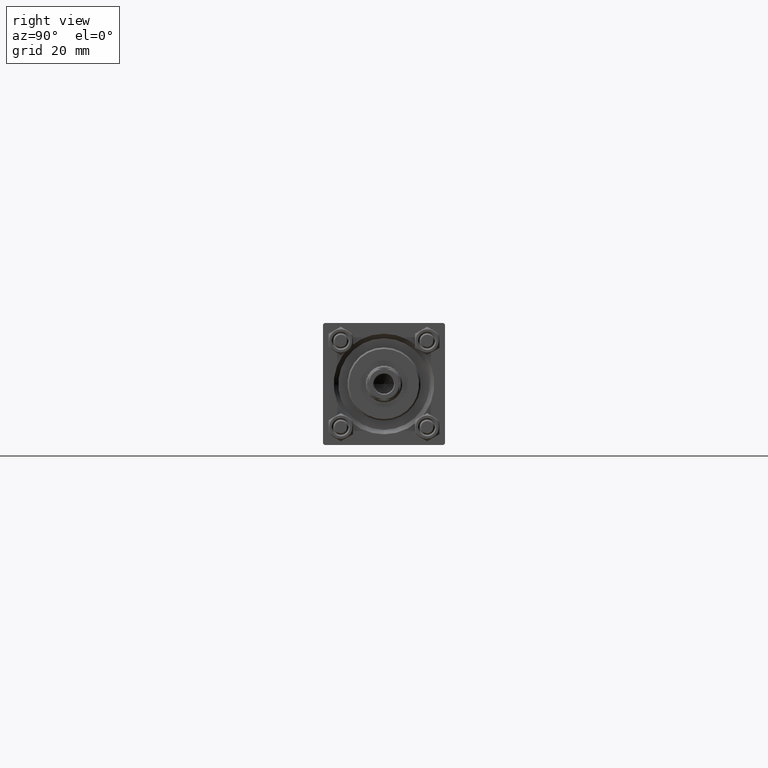
[diagram: clean part render]
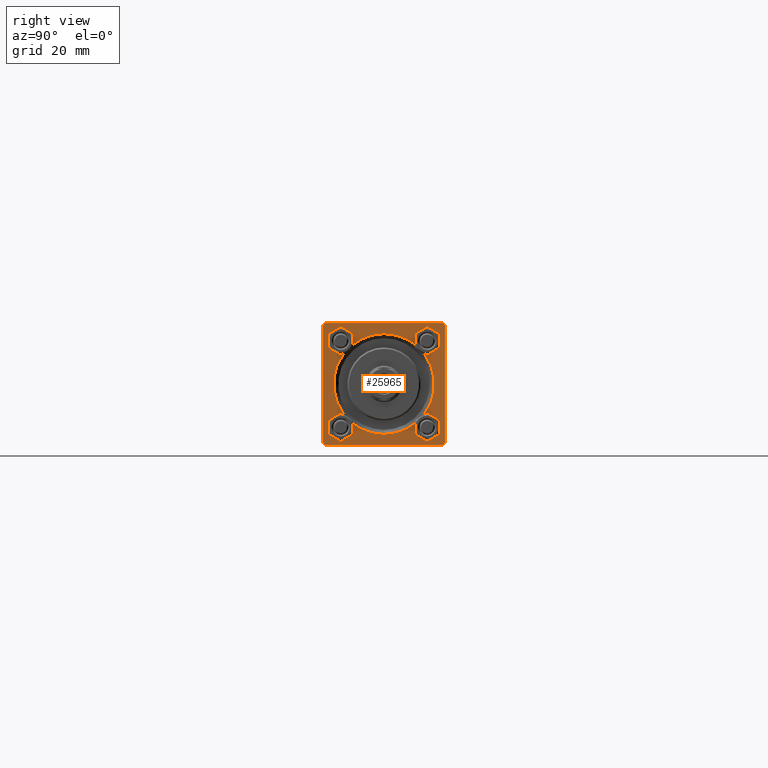
[diagram: same view with one face highlighted and labeled with its STEP entity id]
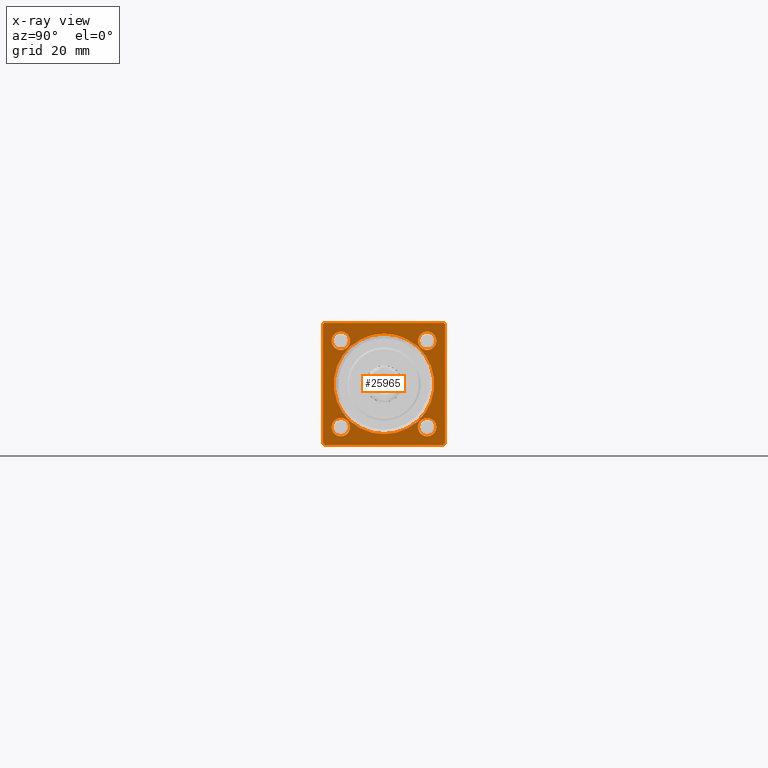
[diagram: x-ray of the same camera — body ghosted, the highlighted face saturated]
A machine part, right view. The second image highlights one B-rep face of the part: STEP entity #25965.
The next image is the same camera in x-ray: the body ghosted, the highlighted face saturated — about 0% of this face is hidden behind the body in this view.
In plain terms, the highlighted planar face has unit normal (-1, 0, 0).
Its self-contained STEP definition (entity closure, byte-faithful):
#706 = ORIENTED_EDGE ( 'NONE', *, *, #49804, .T. ) ;
#763 = EDGE_CURVE ( 'NONE', #780, #22977, #4362, .T. ) ;
#780 = VERTEX_POINT ( 'NONE', #26618 ) ;
#804 = ORIENTED_EDGE ( 'NONE', *, *, #7064, .T. ) ;
#1013 = AXIS2_PLACEMENT_3D ( 'NONE', #13308, #40990, #5756 ) ;
#1208 = ORIENTED_EDGE ( 'NONE', *, *, #34520, .T. ) ;
#1332 = DIRECTION ( 'NONE',  ( -1.000000000000000000, -0.000000000000000000, -0.000000000000000000 ) ) ;
#1452 = LINE ( 'NONE', #8993, #46899 ) ;
#1582 = CARTESIAN_POINT ( 'NONE',  ( 199.0000000000000000, -14.15000000000000036, -14.15000000000000036 ) ) ;
#1589 = DIRECTION ( 'NONE',  ( -1.000000000000000000, -0.000000000000000000, -0.000000000000000000 ) ) ;
#2464 = CARTESIAN_POINT ( 'NONE',  ( 199.0000000000000000, 19.50000000000002487, 20.00000000000000000 ) ) ;
#2575 = DIRECTION ( 'NONE',  ( -0.000000000000000000, 0.7071067811865474617, 0.7071067811865474617 ) ) ;
#2720 = VERTEX_POINT ( 'NONE', #30950 ) ;
#3027 = DIRECTION ( 'NONE',  ( -1.000000000000000000, -0.000000000000000000, -0.000000000000000000 ) ) ;
#3600 = CIRCLE ( 'NONE', #31756, 2.999999999999976463 ) ;
#3939 = ORIENTED_EDGE ( 'NONE', *, *, #763, .T. ) ;
#4362 = CIRCLE ( 'NONE', #47783, 16.49999999999995737 ) ;
#4416 = VERTEX_POINT ( 'NONE', #36690 ) ;
#4858 = CARTESIAN_POINT ( 'NONE',  ( 199.0000000000000000, 14.15000000000000036, -17.14999999999997726 ) ) ;
#4979 = DIRECTION ( 'NONE',  ( 0.000000000000000000, 0.000000000000000000, -1.000000000000000000 ) ) ;
#4981 = LINE ( 'NONE', #20089, #6682 ) ;
#5550 = CARTESIAN_POINT ( 'NONE',  ( 199.0000000000000000, 0.000000000000000000, 0.000000000000000000 ) ) ;
#5756 = DIRECTION ( 'NONE',  ( 0.000000000000000000, 0.000000000000000000, 1.000000000000000000 ) ) ;
#5832 = DIRECTION ( 'NONE',  ( -1.000000000000000000, -0.000000000000000000, -0.000000000000000000 ) ) ;
#5954 = EDGE_CURVE ( 'NONE', #21938, #41557, #3600, .T. ) ;
#5990 = EDGE_LOOP ( 'NONE', ( #706, #3939 ) ) ;
#6482 = DIRECTION ( 'NONE',  ( -1.000000000000000000, -0.000000000000000000, -0.000000000000000000 ) ) ;
#6682 = VECTOR ( 'NONE', #39468, 1000.000000000000114 ) ;
#6852 = CARTESIAN_POINT ( 'NONE',  ( 199.0000000000000000, 19.99999999999999645, -19.50000000000000000 ) ) ;
#6864 = LINE ( 'NONE', #45632, #47238 ) ;
#7064 = EDGE_CURVE ( 'NONE', #2720, #9549, #28665, .T. ) ;
#7390 = DIRECTION ( 'NONE',  ( -1.000000000000000000, -0.000000000000000000, -0.000000000000000000 ) ) ;
#7793 = DIRECTION ( 'NONE',  ( 0.000000000000000000, 0.000000000000000000, 1.000000000000000000 ) ) ;
#8330 = CARTESIAN_POINT ( 'NONE',  ( 199.0000000000000000, -14.15000000000000036, 11.15000000000002700 ) ) ;
#8993 = CARTESIAN_POINT ( 'NONE',  ( 199.0000000000000000, 19.99999999999999645, 20.00000000000000000 ) ) ;
#9197 = VERTEX_POINT ( 'NONE', #49059 ) ;
#9426 = ORIENTED_EDGE ( 'NONE', *, *, #32511, .T. ) ;
#9450 = AXIS2_PLACEMENT_3D ( 'NONE', #24494, #1589, #16935 ) ;
#9549 = VERTEX_POINT ( 'NONE', #35222 ) ;
#9628 = AXIS2_PLACEMENT_3D ( 'NONE', #5550, #28459, #29196 ) ;
#9972 = VERTEX_POINT ( 'NONE', #31259 ) ;
#10128 = LINE ( 'NONE', #6852, #39221 ) ;
#11587 = ORIENTED_EDGE ( 'NONE', *, *, #18369, .T. ) ;
#12083 = VERTEX_POINT ( 'NONE', #33812 ) ;
#12113 = EDGE_CURVE ( 'NONE', #9549, #43620, #6864, .T. ) ;
#13056 = EDGE_CURVE ( 'NONE', #12083, #42443, #10128, .T. ) ;
#13308 = CARTESIAN_POINT ( 'NONE',  ( 199.0000000000000000, 14.15000000000000036, -14.15000000000000036 ) ) ;
#13342 = FACE_BOUND ( 'NONE', #27249, .T. ) ;
#13540 = AXIS2_PLACEMENT_3D ( 'NONE', #1582, #1332, #16928 ) ;
#13810 = ORIENTED_EDGE ( 'NONE', *, *, #25530, .T. ) ;
#13832 = FACE_BOUND ( 'NONE', #38817, .T. ) ;
#13931 = CIRCLE ( 'NONE', #19552, 2.999999999999976463 ) ;
#14862 = CARTESIAN_POINT ( 'NONE',  ( 199.0000000000000000, 19.99999999999999645, -19.50000000000000000 ) ) ;
#16268 = EDGE_CURVE ( 'NONE', #17349, #20863, #34407, .T. ) ;
#16564 = CARTESIAN_POINT ( 'NONE',  ( 199.0000000000000000, -19.49999999999999645, -20.00000000000000000 ) ) ;
#16928 = DIRECTION ( 'NONE',  ( 0.000000000000000000, 0.000000000000000000, 1.000000000000000000 ) ) ;
#16935 = DIRECTION ( 'NONE',  ( 0.000000000000000000, 0.000000000000000000, 1.000000000000000000 ) ) ;
#16941 = LINE ( 'NONE', #37067, #32996 ) ;
#16960 = VERTEX_POINT ( 'NONE', #41407 ) ;
#17018 = EDGE_LOOP ( 'NONE', ( #46626, #30500 ) ) ;
#17195 = DIRECTION ( 'NONE',  ( 0.000000000000000000, 0.000000000000000000, 1.000000000000000000 ) ) ;
#17349 = VERTEX_POINT ( 'NONE', #8330 ) ;
#17569 = CIRCLE ( 'NONE', #13540, 2.999999999999976463 ) ;
#18369 = EDGE_CURVE ( 'NONE', #9197, #9972, #17569, .T. ) ;
#19226 = DIRECTION ( 'NONE',  ( 0.000000000000000000, 0.000000000000000000, 1.000000000000000000 ) ) ;
#19343 = ORIENTED_EDGE ( 'NONE', *, *, #32306, .T. ) ;
#19552 = AXIS2_PLACEMENT_3D ( 'NONE', #23738, #27265, #30788 ) ;
#20089 = CARTESIAN_POINT ( 'NONE',  ( 199.0000000000000000, -20.00000000000000355, 19.50000000000002487 ) ) ;
#20863 = VERTEX_POINT ( 'NONE', #39521 ) ;
#20951 = CARTESIAN_POINT ( 'NONE',  ( 199.0000000000000000, 0.000000000000000000, 0.000000000000000000 ) ) ;
#21205 = DIRECTION ( 'NONE',  ( 0.000000000000000000, 0.7071067811865474617, -0.7071067811865474617 ) ) ;
#21218 = DIRECTION ( 'NONE',  ( 0.000000000000000000, 0.000000000000000000, 1.000000000000000000 ) ) ;
#21818 = VERTEX_POINT ( 'NONE', #4858 ) ;
#21891 = FACE_BOUND ( 'NONE', #17018, .T. ) ;
#21919 = VECTOR ( 'NONE', #27387, 1000.000000000000000 ) ;
#21938 = VERTEX_POINT ( 'NONE', #35212 ) ;
#22418 = CARTESIAN_POINT ( 'NONE',  ( 199.0000000000000000, -14.15000000000000036, -14.15000000000000036 ) ) ;
#22482 = DIRECTION ( 'NONE',  ( 0.000000000000000000, -1.000000000000000000, -8.673617379884035472E-17 ) ) ;
#22977 = VERTEX_POINT ( 'NONE', #30503 ) ;
#23738 = CARTESIAN_POINT ( 'NONE',  ( 199.0000000000000000, 14.15000000000000036, -14.15000000000000036 ) ) ;
#24494 = CARTESIAN_POINT ( 'NONE',  ( 199.0000000000000000, -14.15000000000000036, 14.15000000000000036 ) ) ;
#24521 = VECTOR ( 'NONE', #28906, 1000.000000000000114 ) ;
#25386 = VERTEX_POINT ( 'NONE', #16564 ) ;
#25530 = EDGE_CURVE ( 'NONE', #41557, #21938, #49034, .T. ) ;
#25877 = EDGE_LOOP ( 'NONE', ( #26586, #38410, #36803, #41425, #26714, #804, #27057, #33768 ) ) ;
#25965 = ADVANCED_FACE ( 'NONE', ( #13342, #44297, #13832, #21891, #36262, #36998 ), #36747, .F. ) ;
#26243 = CARTESIAN_POINT ( 'NONE',  ( 199.0000000000000000, -20.00000000000000355, 19.50000000000002487 ) ) ;
#26392 = EDGE_LOOP ( 'NONE', ( #1208, #9426 ) ) ;
#26586 = ORIENTED_EDGE ( 'NONE', *, *, #39069, .T. ) ;
#26618 = CARTESIAN_POINT ( 'NONE',  ( 199.0000000000000000, 2.020667218593127578E-15, 16.49999999999995737 ) ) ;
#26714 = ORIENTED_EDGE ( 'NONE', *, *, #38785, .F. ) ;
#26897 = EDGE_CURVE ( 'NONE', #4416, #25386, #16941, .T. ) ;
#27057 = ORIENTED_EDGE ( 'NONE', *, *, #12113, .T. ) ;
#27249 = EDGE_LOOP ( 'NONE', ( #11587, #19343 ) ) ;
#27265 = DIRECTION ( 'NONE',  ( -1.000000000000000000, -0.000000000000000000, -0.000000000000000000 ) ) ;
#27387 = DIRECTION ( 'NONE',  ( 0.000000000000000000, -1.000000000000000000, 0.000000000000000000 ) ) ;
#28459 = DIRECTION ( 'NONE',  ( -1.000000000000000000, 0.000000000000000000, -0.000000000000000000 ) ) ;
#28536 = CARTESIAN_POINT ( 'NONE',  ( 199.0000000000000000, 14.15000000000000036, 14.15000000000000036 ) ) ;
#28665 = LINE ( 'NONE', #2464, #24521 ) ;
#28906 = DIRECTION ( 'NONE',  ( 0.000000000000000000, -0.7071067811865474617, 0.7071067811865474617 ) ) ;
#29143 = AXIS2_PLACEMENT_3D ( 'NONE', #22418, #3027, #7793 ) ;
#29196 = DIRECTION ( 'NONE',  ( -0.000000000000000000, 0.000000000000000000, 1.000000000000000000 ) ) ;
#29316 = EDGE_CURVE ( 'NONE', #20863, #17349, #41905, .T. ) ;
#30321 = CARTESIAN_POINT ( 'NONE',  ( 199.0000000000000000, 14.15000000000000036, 14.15000000000000036 ) ) ;
#30500 = ORIENTED_EDGE ( 'NONE', *, *, #29316, .T. ) ;
#30503 = CARTESIAN_POINT ( 'NONE',  ( 199.0000000000000000, 0.000000000000000000, -16.49999999999995737 ) ) ;
#30788 = DIRECTION ( 'NONE',  ( 0.000000000000000000, 0.000000000000000000, 1.000000000000000000 ) ) ;
#30950 = CARTESIAN_POINT ( 'NONE',  ( 199.0000000000000000, 19.99999999999999645, 19.50000000000002842 ) ) ;
#31259 = CARTESIAN_POINT ( 'NONE',  ( 199.0000000000000000, -14.15000000000000036, -11.15000000000002522 ) ) ;
#31298 = LINE ( 'NONE', #43365, #33202 ) ;
#31756 = AXIS2_PLACEMENT_3D ( 'NONE', #28536, #47674, #17195 ) ;
#32306 = EDGE_CURVE ( 'NONE', #9972, #9197, #46840, .T. ) ;
#32357 = CIRCLE ( 'NONE', #1013, 2.999999999999976463 ) ;
#32511 = EDGE_CURVE ( 'NONE', #16960, #21818, #32357, .T. ) ;
#32996 = VECTOR ( 'NONE', #21205, 1000.000000000000114 ) ;
#33202 = VECTOR ( 'NONE', #46651, 1000.000000000000000 ) ;
#33563 = CIRCLE ( 'NONE', #39165, 16.49999999999995737 ) ;
#33675 = EDGE_CURVE ( 'NONE', #12083, #25386, #39209, .T. ) ;
#33768 = ORIENTED_EDGE ( 'NONE', *, *, #34812, .T. ) ;
#33812 = CARTESIAN_POINT ( 'NONE',  ( 199.0000000000000000, 19.49999999999999645, -20.00000000000000000 ) ) ;
#34407 = CIRCLE ( 'NONE', #9450, 2.999999999999976463 ) ;
#34496 = CARTESIAN_POINT ( 'NONE',  ( 199.0000000000000000, -14.15000000000000036, 14.15000000000000036 ) ) ;
#34520 = EDGE_CURVE ( 'NONE', #21818, #16960, #13931, .T. ) ;
#34812 = EDGE_CURVE ( 'NONE', #43620, #40256, #4981, .T. ) ;
#35212 = CARTESIAN_POINT ( 'NONE',  ( 199.0000000000000000, 14.15000000000000036, 17.14999999999997726 ) ) ;
#35222 = CARTESIAN_POINT ( 'NONE',  ( 199.0000000000000000, 19.50000000000002487, 20.00000000000000000 ) ) ;
#35380 = AXIS2_PLACEMENT_3D ( 'NONE', #30321, #7390, #19226 ) ;
#36262 = FACE_BOUND ( 'NONE', #5990, .T. ) ;
#36690 = CARTESIAN_POINT ( 'NONE',  ( 199.0000000000000000, -20.00000000000000000, -19.49999999999999645 ) ) ;
#36747 = PLANE ( 'NONE',  #9628 ) ;
#36803 = ORIENTED_EDGE ( 'NONE', *, *, #33675, .F. ) ;
#36998 = FACE_OUTER_BOUND ( 'NONE', #25877, .T. ) ;
#37067 = CARTESIAN_POINT ( 'NONE',  ( 199.0000000000000000, -19.49999999999999645, -20.00000000000000000 ) ) ;
#37943 = CARTESIAN_POINT ( 'NONE',  ( 199.0000000000000000, 0.000000000000000000, 0.000000000000000000 ) ) ;
#38410 = ORIENTED_EDGE ( 'NONE', *, *, #26897, .T. ) ;
#38785 = EDGE_CURVE ( 'NONE', #2720, #42443, #1452, .T. ) ;
#38817 = EDGE_LOOP ( 'NONE', ( #13810, #42254 ) ) ;
#39069 = EDGE_CURVE ( 'NONE', #40256, #4416, #31298, .T. ) ;
#39165 = AXIS2_PLACEMENT_3D ( 'NONE', #20951, #5832, #43370 ) ;
#39209 = LINE ( 'NONE', #42732, #21919 ) ;
#39221 = VECTOR ( 'NONE', #2575, 1000.000000000000114 ) ;
#39468 = DIRECTION ( 'NONE',  ( -0.000000000000000000, -0.7071067811865474617, -0.7071067811865474617 ) ) ;
#39521 = CARTESIAN_POINT ( 'NONE',  ( 199.0000000000000000, -14.15000000000000036, 17.14999999999997726 ) ) ;
#40256 = VERTEX_POINT ( 'NONE', #26243 ) ;
#40608 = DIRECTION ( 'NONE',  ( -1.000000000000000000, -0.000000000000000000, -0.000000000000000000 ) ) ;
#40990 = DIRECTION ( 'NONE',  ( -1.000000000000000000, -0.000000000000000000, -0.000000000000000000 ) ) ;
#41407 = CARTESIAN_POINT ( 'NONE',  ( 199.0000000000000000, 14.15000000000000036, -11.15000000000002522 ) ) ;
#41425 = ORIENTED_EDGE ( 'NONE', *, *, #13056, .T. ) ;
#41557 = VERTEX_POINT ( 'NONE', #44031 ) ;
#41905 = CIRCLE ( 'NONE', #48342, 2.999999999999976463 ) ;
#42254 = ORIENTED_EDGE ( 'NONE', *, *, #5954, .T. ) ;
#42443 = VERTEX_POINT ( 'NONE', #14862 ) ;
#42732 = CARTESIAN_POINT ( 'NONE',  ( 199.0000000000000000, 19.99999999999999645, -20.00000000000000000 ) ) ;
#43365 = CARTESIAN_POINT ( 'NONE',  ( 199.0000000000000000, -20.00000000000000355, 19.99999999999999645 ) ) ;
#43370 = DIRECTION ( 'NONE',  ( 0.000000000000000000, 0.000000000000000000, 1.000000000000000000 ) ) ;
#43620 = VERTEX_POINT ( 'NONE', #44490 ) ;
#44031 = CARTESIAN_POINT ( 'NONE',  ( 199.0000000000000000, 14.15000000000000036, 11.15000000000002700 ) ) ;
#44297 = FACE_BOUND ( 'NONE', #26392, .T. ) ;
#44490 = CARTESIAN_POINT ( 'NONE',  ( 199.0000000000000000, -19.50000000000003197, 19.99999999999999645 ) ) ;
#45500 = DIRECTION ( 'NONE',  ( 0.000000000000000000, 0.000000000000000000, 1.000000000000000000 ) ) ;
#45632 = CARTESIAN_POINT ( 'NONE',  ( 199.0000000000000000, 19.99999999999999645, 20.00000000000000000 ) ) ;
#46626 = ORIENTED_EDGE ( 'NONE', *, *, #16268, .T. ) ;
#46651 = DIRECTION ( 'NONE',  ( 0.000000000000000000, 8.673617379884036705E-17, -1.000000000000000000 ) ) ;
#46840 = CIRCLE ( 'NONE', #29143, 2.999999999999976463 ) ;
#46899 = VECTOR ( 'NONE', #4979, 1000.000000000000000 ) ;
#47238 = VECTOR ( 'NONE', #22482, 1000.000000000000000 ) ;
#47674 = DIRECTION ( 'NONE',  ( -1.000000000000000000, -0.000000000000000000, -0.000000000000000000 ) ) ;
#47783 = AXIS2_PLACEMENT_3D ( 'NONE', #37943, #6482, #45500 ) ;
#48342 = AXIS2_PLACEMENT_3D ( 'NONE', #34496, #40608, #21218 ) ;
#49034 = CIRCLE ( 'NONE', #35380, 2.999999999999976463 ) ;
#49059 = CARTESIAN_POINT ( 'NONE',  ( 199.0000000000000000, -14.15000000000000036, -17.14999999999997726 ) ) ;
#49804 = EDGE_CURVE ( 'NONE', #22977, #780, #33563, .T. ) ;